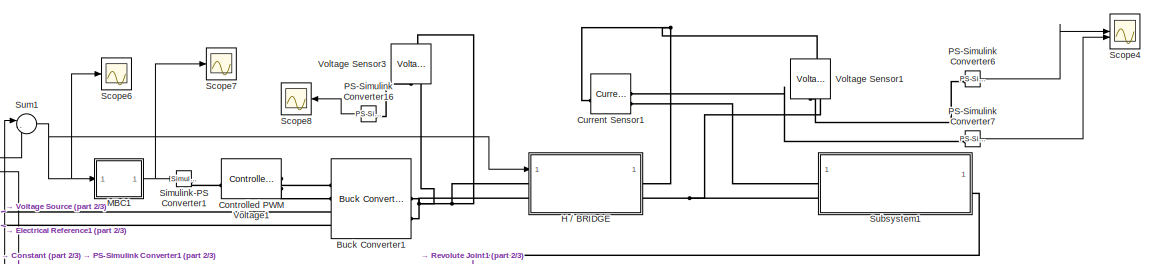
[diagram: root canvas - part 1/3, top center region]
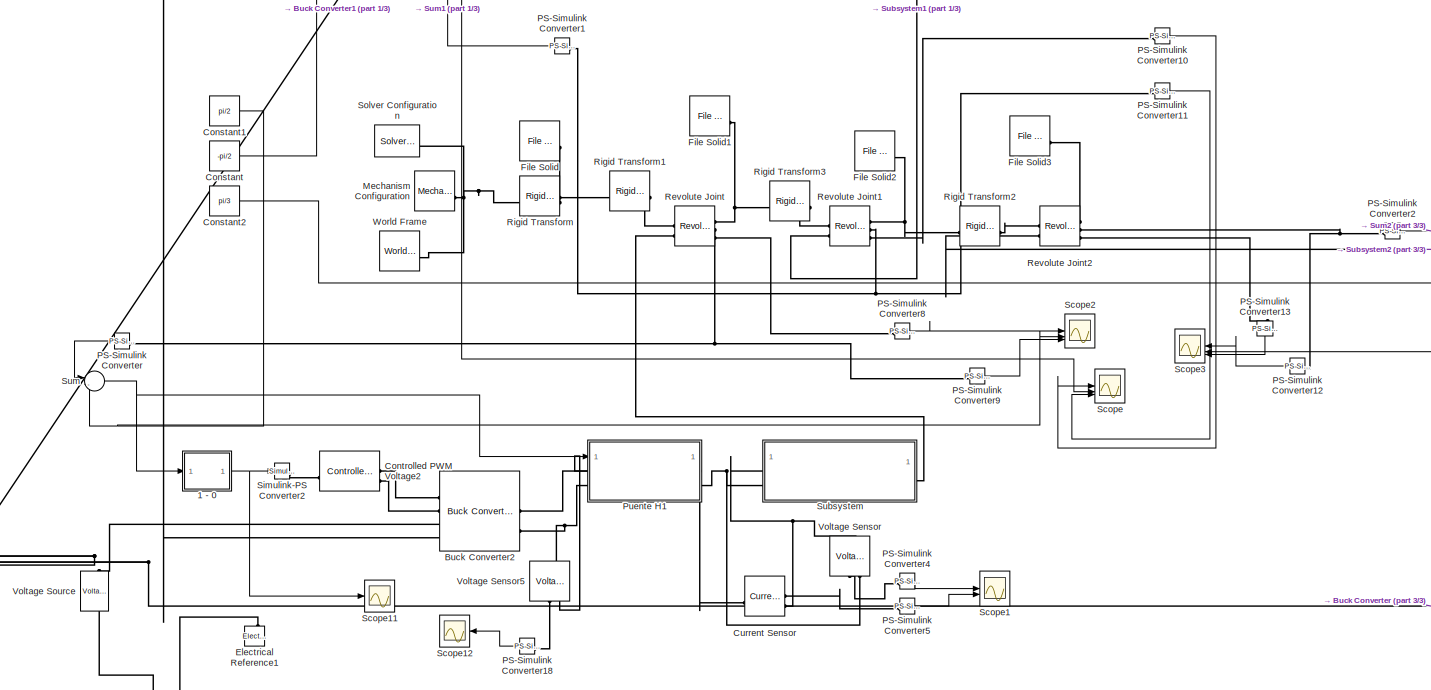
[diagram: root canvas - part 2/3, middle left region]
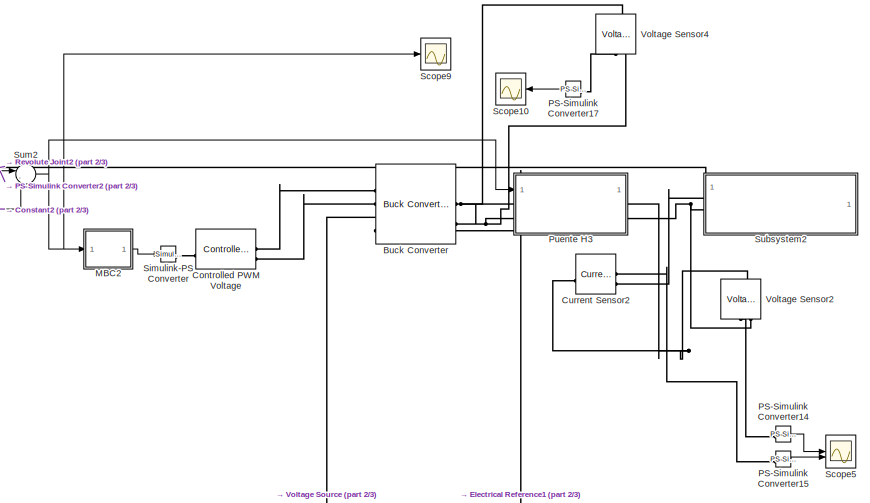
[diagram: root canvas - part 3/3, middle right region]
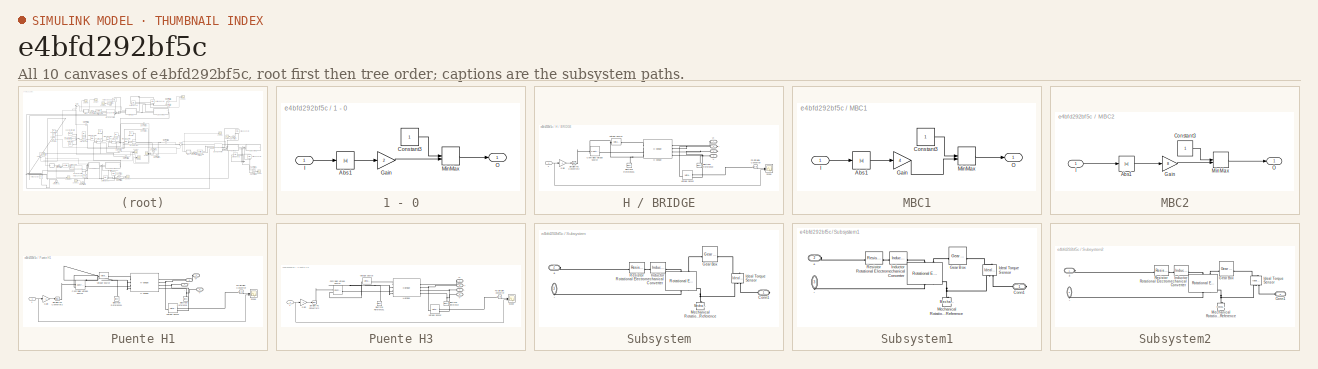
[diagram: thumbnail index - all 10 canvases of the model, root first then tree order]
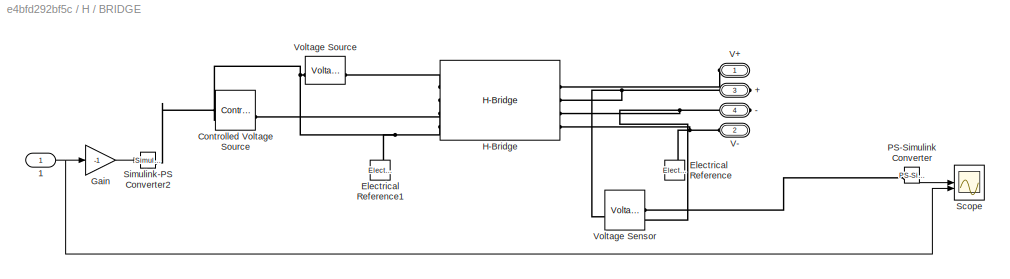
MODEL slx_e4bfd292bf5c
KIND model
CONFIG AbsTol = auto
CONFIG EnableMultiTasking = off
CONFIG FixedStep = auto
CONFIG MaxStep = auto
CONFIG MinStep = 0.0000001
CONFIG RelTol = 1e-3
CONFIG SampleTimeConstraint = Unconstrained
CONFIG SolverName = VariableStepAuto
CONFIG StartTime = 0.0
CONFIG StopTime = 10
BLOCK [SubSystem] 1 - 0
BLOCK [Abs] 1 - 0/Abs1
  SaturateOnIntegerOverflow = off
BLOCK [Constant] 1 - 0/Constant3
BLOCK [Gain] 1 - 0/Gain
  Gain = 2
BLOCK [Inport] 1 - 0/I
  NameLocation = top
BLOCK [MinMax] 1 - 0/MinMax
  Inputs = 2
BLOCK [Outport] 1 - 0/O
BLOCK [Reference] Buck Converter  REF=ee_lib/Semiconductors &
Converters/Converters/Buck Converter
  SourceBlock = ee_lib/Semiconductors &\nConverters/Converters/Buck Converter
  SourceType = Buck Converter
BLOCK [Reference] Buck Converter1  REF=ee_lib/Semiconductors &
Converters/Converters/Buck Converter
  SourceBlock = ee_lib/Semiconductors &\nConverters/Converters/Buck Converter
  SourceType = Buck Converter
BLOCK [Reference] Buck Converter2  REF=ee_lib/Semiconductors &
Converters/Converters/Buck Converter
  SourceBlock = ee_lib/Semiconductors &\nConverters/Converters/Buck Converter
  SourceType = Buck Converter
BLOCK [Constant] Constant
  Value = -pi/2
BLOCK [Constant] Constant1
  Value = pi/2
BLOCK [Constant] Constant2
  Value = pi/3
BLOCK [Reference] Controlled PWM Voltage  REF=ee_lib/Integrated Circuits/Controlled PWM
Voltage
  SourceBlock = ee_lib/Integrated Circuits/Controlled PWM\nVoltage
  SourceType = Controlled PWM\nVoltage
BLOCK [Reference] Controlled PWM Voltage1  REF=ee_lib/Integrated Circuits/Controlled PWM
Voltage
  SourceBlock = ee_lib/Integrated Circuits/Controlled PWM\nVoltage
  SourceType = Controlled PWM\nVoltage
BLOCK [Reference] Controlled PWM Voltage2  REF=ee_lib/Integrated Circuits/Controlled PWM
Voltage
  SourceBlock = ee_lib/Integrated Circuits/Controlled PWM\nVoltage
  SourceType = Controlled PWM\nVoltage
BLOCK [Reference] Current Sensor  REF=fl_lib/Electrical/Electrical Sensors/Current Sensor
  SourceBlock = fl_lib/Electrical/Electrical Sensors/Current Sensor
  SourceType = Current Sensor
BLOCK [Reference] Current Sensor1  REF=fl_lib/Electrical/Electrical Sensors/Current Sensor
  SourceBlock = fl_lib/Electrical/Electrical Sensors/Current Sensor
  SourceType = Current Sensor
BLOCK [Reference] Current Sensor2  REF=fl_lib/Electrical/Electrical Sensors/Current Sensor
  SourceBlock = fl_lib/Electrical/Electrical Sensors/Current Sensor
  SourceType = Current Sensor
BLOCK [Reference] Electrical Reference1  REF=fl_lib/Electrical/Electrical Elements/Electrical Reference
  NameLocation = right
  SourceBlock = fl_lib/Electrical/Electrical Elements/Electrical Reference
  SourceType = Electrical Reference
BLOCK [Reference] File Solid  REF=sm_lib/Body Elements/File Solid
  SourceBlock = sm_lib/Body Elements/File Solid
  SourceType = File Solid
BLOCK [Reference] File Solid1  REF=sm_lib/Body Elements/File Solid
  SourceBlock = sm_lib/Body Elements/File Solid
  SourceType = File Solid
BLOCK [Reference] File Solid2  REF=sm_lib/Body Elements/File Solid
  SourceBlock = sm_lib/Body Elements/File Solid
  SourceType = File Solid
BLOCK [Reference] File Solid3  REF=sm_lib/Body Elements/File Solid
  SourceBlock = sm_lib/Body Elements/File Solid
  SourceType = File Solid
BLOCK [SubSystem] H // BRIDGE
BLOCK [PMIOPort] H // BRIDGE/+
  NameLocation = top
  Port = 3
  Side = Right
BLOCK [PMIOPort] H // BRIDGE/-
  NameLocation = top
  Port = 4
  Side = Right
BLOCK [Inport] H // BRIDGE/1
BLOCK [Reference] H // BRIDGE/Controlled Voltage Source  REF=fl_lib/Electrical/Electrical Sources/Controlled Voltage
Source
  SourceBlock = fl_lib/Electrical/Electrical Sources/Controlled Voltage\nSource
  SourceType = Controlled Voltage\nSource
BLOCK [Reference] H // BRIDGE/Electrical Reference  REF=fl_lib/Electrical/Electrical Elements/Electrical Reference
  NameLocation = right
  SourceBlock = fl_lib/Electrical/Electrical Elements/Electrical Reference
  SourceType = Electrical Reference
BLOCK [Reference] H // BRIDGE/Electrical Reference1  REF=fl_lib/Electrical/Electrical Elements/Electrical Reference
  NameLocation = right
  SourceBlock = fl_lib/Electrical/Electrical Elements/Electrical Reference
  SourceType = Electrical Reference
BLOCK [Gain] H // BRIDGE/Gain
  Gain = -1
BLOCK [Reference] H // BRIDGE/H-Bridge  REF=ee_lib/Semiconductors &
Converters/Converters/H-Bridge
  SourceBlock = ee_lib/Semiconductors &\nConverters/Converters/H-Bridge
  SourceType = H-Bridge
BLOCK [Reference] H // BRIDGE/PS-Simulink Converter  REF=nesl_utility/PS-Simulink
Converter
  SourceBlock = nesl_utility/PS-Simulink\nConverter
  SourceType = PS-Simulink\nConverter
BLOCK [Scope] H // BRIDGE/Scope
  ActiveDisplayYMaximum = 0.22292
  ActiveDisplayYMinimum = -0.22666
  DataLoggingVariableName = ScopeData3
  Floating = off
  GraphicalSettings = {"GraphicalSettings":{"LegacySettings":true,"Style":{"AxesScalingProperties":{"ScaleAxesLimitsAtStop":false},"Style":{"AxesColor":"[0 0 0]","ChannelNames":[""],"ColorOrder":"[1 0.909803921568627 0.392156862745098;0.149019607843137 0.549019607843137 0.866666666666667;0.96078431372549 0.466666666666667 0.16078431372549;0.286274509803922 0.858823529411765 0.250980392156863;0.752941176470588 0.3607843...<+516ch>  <repeated x3 — deduplicated; at blocks: Scope>
  MultipleDisplayCache = [{"MaxYLimMag":0.22666,"MaxYLimReal":0.22292,"MinYLimMag":0,"MinYLimReal":-0.22666,"PlotAsMagnitudePhase":false,"ShowGrid":true,"ShowLegend":false,"Title":"%<SignalLabel>","YLabel":""}]
  NumInputPorts = 2
  WasSavedAsWebScope = on
  WindowPosition = [1632 871 568 423]
BLOCK [Reference] H // BRIDGE/Simulink-PS Converter2  REF=nesl_utility/Simulink-PS
Converter
  SourceBlock = nesl_utility/Simulink-PS\nConverter
  SourceType = Simulink-PS\nConverter
BLOCK [PMIOPort] H // BRIDGE/V+
  NameLocation = top
  Side = Left
BLOCK [PMIOPort] H // BRIDGE/V-
  NameLocation = top
  Port = 2
  Side = Left
BLOCK [Reference] H // BRIDGE/Voltage Sensor  REF=fl_lib/Electrical/Electrical Sensors/Voltage Sensor
  NameLocation = top
  SourceBlock = fl_lib/Electrical/Electrical Sensors/Voltage Sensor
  SourceType = Voltage Sensor
BLOCK [Reference] H // BRIDGE/Voltage Source  REF=ee_lib/Sources/Voltage Source
  SourceBlock = ee_lib/Sources/Voltage Source
  SourceType = Voltage Source
BLOCK [SubSystem] MBC1
BLOCK [Abs] MBC1/Abs1
  SaturateOnIntegerOverflow = off
BLOCK [Constant] MBC1/Constant3
BLOCK [Gain] MBC1/Gain
  Gain = 4
BLOCK [Inport] MBC1/I
  NameLocation = top
BLOCK [MinMax] MBC1/MinMax
  Inputs = 2
BLOCK [Outport] MBC1/O
BLOCK [SubSystem] MBC2
BLOCK [Abs] MBC2/Abs1
  SaturateOnIntegerOverflow = off
BLOCK [Constant] MBC2/Constant3
BLOCK [Gain] MBC2/Gain
  Gain = 8
BLOCK [Inport] MBC2/I
  NameLocation = top
BLOCK [MinMax] MBC2/MinMax
  Inputs = 2
BLOCK [Outport] MBC2/O
BLOCK [Reference] Mechanism Configuration  REF=sm_lib/Utilities/Mechanism
Configuration
  SourceBlock = sm_lib/Utilities/Mechanism\nConfiguration
  SourceType = Mechanism\nConfiguration
BLOCK [Reference] PS-Simulink Converter  REF=nesl_utility/PS-Simulink
Converter
  NameLocation = top
  SourceBlock = nesl_utility/PS-Simulink\nConverter
  SourceType = PS-Simulink\nConverter
BLOCK [Reference] PS-Simulink Converter1  REF=nesl_utility/PS-Simulink
Converter
  NameLocation = top
  SourceBlock = nesl_utility/PS-Simulink\nConverter
  SourceType = PS-Simulink\nConverter
BLOCK [Reference] PS-Simulink Converter10  REF=nesl_utility/PS-Simulink
Converter
  SourceBlock = nesl_utility/PS-Simulink\nConverter
  SourceType = PS-Simulink\nConverter
BLOCK [Reference] PS-Simulink Converter11  REF=nesl_utility/PS-Simulink
Converter
  SourceBlock = nesl_utility/PS-Simulink\nConverter
  SourceType = PS-Simulink\nConverter
BLOCK [Reference] PS-Simulink Converter12  REF=nesl_utility/PS-Simulink
Converter
  NameLocation = top
  SourceBlock = nesl_utility/PS-Simulink\nConverter
  SourceType = PS-Simulink\nConverter
BLOCK [Reference] PS-Simulink Converter13  REF=nesl_utility/PS-Simulink
Converter
  NameLocation = left
  SourceBlock = nesl_utility/PS-Simulink\nConverter
  SourceType = PS-Simulink\nConverter
BLOCK [Reference] PS-Simulink Converter14  REF=nesl_utility/PS-Simulink
Converter
  SourceBlock = nesl_utility/PS-Simulink\nConverter
  SourceType = PS-Simulink\nConverter
BLOCK [Reference] PS-Simulink Converter15  REF=nesl_utility/PS-Simulink
Converter
  SourceBlock = nesl_utility/PS-Simulink\nConverter
  SourceType = PS-Simulink\nConverter
BLOCK [Reference] PS-Simulink Converter16  REF=nesl_utility/PS-Simulink
Converter
  NameLocation = top
  SourceBlock = nesl_utility/PS-Simulink\nConverter
  SourceType = PS-Simulink\nConverter
BLOCK [Reference] PS-Simulink Converter17  REF=nesl_utility/PS-Simulink
Converter
  NameLocation = top
  SourceBlock = nesl_utility/PS-Simulink\nConverter
  SourceType = PS-Simulink\nConverter
BLOCK [Reference] PS-Simulink Converter18  REF=nesl_utility/PS-Simulink
Converter
  NameLocation = top
  SourceBlock = nesl_utility/PS-Simulink\nConverter
  SourceType = PS-Simulink\nConverter
BLOCK [Reference] PS-Simulink Converter2  REF=nesl_utility/PS-Simulink
Converter
  SourceBlock = nesl_utility/PS-Simulink\nConverter
  SourceType = PS-Simulink\nConverter
BLOCK [Reference] PS-Simulink Converter4  REF=nesl_utility/PS-Simulink
Converter
  SourceBlock = nesl_utility/PS-Simulink\nConverter
  SourceType = PS-Simulink\nConverter
BLOCK [Reference] PS-Simulink Converter5  REF=nesl_utility/PS-Simulink
Converter
  SourceBlock = nesl_utility/PS-Simulink\nConverter
  SourceType = PS-Simulink\nConverter
BLOCK [Reference] PS-Simulink Converter6  REF=nesl_utility/PS-Simulink
Converter
  SourceBlock = nesl_utility/PS-Simulink\nConverter
  SourceType = PS-Simulink\nConverter
BLOCK [Reference] PS-Simulink Converter7  REF=nesl_utility/PS-Simulink
Converter
  SourceBlock = nesl_utility/PS-Simulink\nConverter
  SourceType = PS-Simulink\nConverter
BLOCK [Reference] PS-Simulink Converter8  REF=nesl_utility/PS-Simulink
Converter
  SourceBlock = nesl_utility/PS-Simulink\nConverter
  SourceType = PS-Simulink\nConverter
BLOCK [Reference] PS-Simulink Converter9  REF=nesl_utility/PS-Simulink
Converter
  SourceBlock = nesl_utility/PS-Simulink\nConverter
  SourceType = PS-Simulink\nConverter
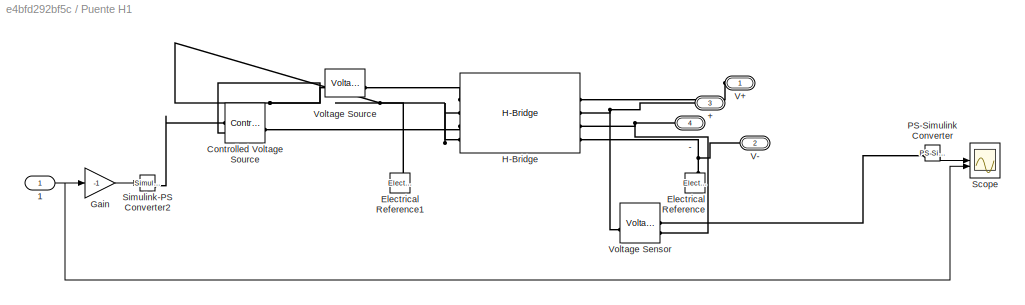
BLOCK [SubSystem] Puente H1
BLOCK [PMIOPort] Puente H1/+
  NameLocation = top
  Port = 3
  Side = Right
BLOCK [PMIOPort] Puente H1/-
  NameLocation = top
  Port = 4
  Side = Right
BLOCK [Inport] Puente H1/1
BLOCK [Reference] Puente H1/Controlled Voltage Source  REF=fl_lib/Electrical/Electrical Sources/Controlled Voltage
Source
  SourceBlock = fl_lib/Electrical/Electrical Sources/Controlled Voltage\nSource
  SourceType = Controlled Voltage\nSource
BLOCK [Reference] Puente H1/Electrical Reference  REF=fl_lib/Electrical/Electrical Elements/Electrical Reference
  NameLocation = right
  SourceBlock = fl_lib/Electrical/Electrical Elements/Electrical Reference
  SourceType = Electrical Reference
BLOCK [Reference] Puente H1/Electrical Reference1  REF=fl_lib/Electrical/Electrical Elements/Electrical Reference
  NameLocation = right
  SourceBlock = fl_lib/Electrical/Electrical Elements/Electrical Reference
  SourceType = Electrical Reference
BLOCK [Gain] Puente H1/Gain
  Gain = -1
BLOCK [Reference] Puente H1/H-Bridge  REF=ee_lib/Semiconductors &
Converters/Converters/H-Bridge
  SourceBlock = ee_lib/Semiconductors &\nConverters/Converters/H-Bridge
  SourceType = H-Bridge
BLOCK [Reference] Puente H1/PS-Simulink Converter  REF=nesl_utility/PS-Simulink
Converter
  SourceBlock = nesl_utility/PS-Simulink\nConverter
  SourceType = PS-Simulink\nConverter
BLOCK [Scope] Puente H1/Scope
  ActiveDisplayYMaximum = 25.62473
  ActiveDisplayYMinimum = -9.33939
  DataLoggingVariableName = ScopeData3
  Floating = off
  MultipleDisplayCache = [{"MaxYLimMag":25.62473,"MaxYLimReal":25.62473,"MinYLimMag":0,"MinYLimReal":-9.33939,"PlotAsMagnitudePhase":false,"ShowGrid":true,"ShowLegend":false,"Title":"%<SignalLabel>","YLabel":""}]
  NumInputPorts = 2
  WasSavedAsWebScope = on
  WindowPosition = [1632 871 568 423]
BLOCK [Reference] Puente H1/Simulink-PS Converter2  REF=nesl_utility/Simulink-PS
Converter
  SourceBlock = nesl_utility/Simulink-PS\nConverter
  SourceType = Simulink-PS\nConverter
BLOCK [PMIOPort] Puente H1/V+
  NameLocation = top
  Side = Left
BLOCK [PMIOPort] Puente H1/V-
  NameLocation = top
  Port = 2
  Side = Left
BLOCK [Reference] Puente H1/Voltage Sensor  REF=fl_lib/Electrical/Electrical Sensors/Voltage Sensor
  NameLocation = top
  SourceBlock = fl_lib/Electrical/Electrical Sensors/Voltage Sensor
  SourceType = Voltage Sensor
BLOCK [Reference] Puente H1/Voltage Source  REF=ee_lib/Sources/Voltage Source
  SourceBlock = ee_lib/Sources/Voltage Source
  SourceType = Voltage Source
BLOCK [SubSystem] Puente H3
BLOCK [PMIOPort] Puente H3/+
  NameLocation = top
  Port = 3
  Side = Right
BLOCK [PMIOPort] Puente H3/-
  NameLocation = top
  Port = 4
  Side = Right
BLOCK [Inport] Puente H3/1
BLOCK [Reference] Puente H3/Controlled Voltage Source  REF=fl_lib/Electrical/Electrical Sources/Controlled Voltage
Source
  SourceBlock = fl_lib/Electrical/Electrical Sources/Controlled Voltage\nSource
  SourceType = Controlled Voltage\nSource
BLOCK [Reference] Puente H3/Electrical Reference  REF=fl_lib/Electrical/Electrical Elements/Electrical Reference
  NameLocation = right
  SourceBlock = fl_lib/Electrical/Electrical Elements/Electrical Reference
  SourceType = Electrical Reference
BLOCK [Reference] Puente H3/Electrical Reference1  REF=fl_lib/Electrical/Electrical Elements/Electrical Reference
  NameLocation = right
  SourceBlock = fl_lib/Electrical/Electrical Elements/Electrical Reference
  SourceType = Electrical Reference
BLOCK [Gain] Puente H3/Gain
  Gain = -1
BLOCK [Reference] Puente H3/H-Bridge  REF=ee_lib/Semiconductors &
Converters/Converters/H-Bridge
  SourceBlock = ee_lib/Semiconductors &\nConverters/Converters/H-Bridge
  SourceType = H-Bridge
BLOCK [Reference] Puente H3/PS-Simulink Converter  REF=nesl_utility/PS-Simulink
Converter
  SourceBlock = nesl_utility/PS-Simulink\nConverter
  SourceType = PS-Simulink\nConverter
BLOCK [Scope] Puente H3/Scope
  ActiveDisplayYMaximum = 22.74285
  ActiveDisplayYMinimum = -12.6843
  DataLoggingVariableName = ScopeData3
  Floating = off
  MultipleDisplayCache = [{"MaxYLimMag":22.74285,"MaxYLimReal":22.74285,"MinYLimMag":0,"MinYLimReal":-12.6843,"PlotAsMagnitudePhase":false,"ShowGrid":true,"ShowLegend":false,"Title":"%<SignalLabel>","YLabel":""}]
  NumInputPorts = 2
  WasSavedAsWebScope = on
  WindowPosition = [1632 871 568 423]
BLOCK [Reference] Puente H3/Simulink-PS Converter2  REF=nesl_utility/Simulink-PS
Converter
  SourceBlock = nesl_utility/Simulink-PS\nConverter
  SourceType = Simulink-PS\nConverter
BLOCK [PMIOPort] Puente H3/V+
  NameLocation = top
  Side = Left
BLOCK [PMIOPort] Puente H3/V-
  NameLocation = top
  Port = 2
  Side = Left
BLOCK [Reference] Puente H3/Voltage Sensor  REF=fl_lib/Electrical/Electrical Sensors/Voltage Sensor
  NameLocation = top
  SourceBlock = fl_lib/Electrical/Electrical Sensors/Voltage Sensor
  SourceType = Voltage Sensor
BLOCK [Reference] Puente H3/Voltage Source  REF=ee_lib/Sources/Voltage Source
  SourceBlock = ee_lib/Sources/Voltage Source
  SourceType = Voltage Source
BLOCK [Reference] Revolute Joint  REF=sm_lib/Joints/Revolute Joint
  SourceBlock = sm_lib/Joints/Revolute Joint
  SourceType = Revolute Joint
BLOCK [Reference] Revolute Joint1  REF=sm_lib/Joints/Revolute Joint
  SourceBlock = sm_lib/Joints/Revolute Joint
  SourceType = Revolute Joint
BLOCK [Reference] Revolute Joint2  REF=sm_lib/Joints/Revolute Joint
  SourceBlock = sm_lib/Joints/Revolute Joint
  SourceType = Revolute Joint
BLOCK [Reference] Rigid Transform  REF=sm_lib/Frames and
Transforms/Rigid
Transform
  SourceBlock = sm_lib/Frames and\nTransforms/Rigid\nTransform
  SourceType = Rigid\nTransform
BLOCK [Reference] Rigid Transform1  REF=sm_lib/Frames and
Transforms/Rigid
Transform
  SourceBlock = sm_lib/Frames and\nTransforms/Rigid\nTransform
  SourceType = Rigid\nTransform
BLOCK [Reference] Rigid Transform2  REF=sm_lib/Frames and
Transforms/Rigid
Transform
  SourceBlock = sm_lib/Frames and\nTransforms/Rigid\nTransform
  SourceType = Rigid\nTransform
BLOCK [Reference] Rigid Transform3  REF=sm_lib/Frames and
Transforms/Rigid
Transform
  SourceBlock = sm_lib/Frames and\nTransforms/Rigid\nTransform
  SourceType = Rigid\nTransform
BLOCK [Scope] Scope
  ActiveDisplayYMaximum = 6.101276106816135
  ActiveDisplayYMinimum = -21.909394688833153
  ContainerLayout = {"WindowBounds":[543,1553,540,575]}
  DataLoggingVariableName = ScopeData1
  Floating = off
  GraphicalSettings = {"AxesScalingProperties":{"AlignXAxis":"Center","AlignYAxis":"Center","AutoScaleXAxisLimits":false,"AxesScaling":"Manual","AxesScalingNumUpdates":10,"ExpandOnly":true,"ScaleAxesLimitsAtStop":false,"XAxisDataRange":100,"YAxisDataRange":80},"DisplayProperties":{"ColorOrder":["auto","auto","auto","auto","auto","auto","auto","auto","auto","auto","auto","auto","auto","auto","auto","auto","auto","auto",...<+2308ch>
  MultipleDisplayCache = [{"MaxYLimMag":22.355018996945756,"MaxYLimReal":6.101276106816135,"MinYLimMag":0,"MinYLimReal":-21.909394688833153,"PlotAsMagnitudePhase":false,"ShowGrid":true,"ShowLegend":true,"Title":"%<SignalLabel>","YLabel":""}]
  NumInputPorts = 3
  ShowLegend = on
  Visible = on
  WasSavedAsWebScope = on
  WindowPosition = [1632 868 576 426]
BLOCK [Scope] Scope1
  ActiveDisplayYMaximum = 27.089698209410535
  ActiveDisplayYMinimum = -13.779161790589466
  ContainerLayout = {"WindowBounds":[502,1553,565,575]}
  DataLoggingVariableName = ScopeData2
  Floating = off
  GraphicalSettings = {"AxesScalingProperties":{"AlignXAxis":"Center","AlignYAxis":"Center","AutoScaleXAxisLimits":false,"AxesScaling":"Manual","AxesScalingNumUpdates":10,"ExpandOnly":true,"ScaleAxesLimitsAtStop":false,"XAxisDataRange":100,"YAxisDataRange":80},"DisplayProperties":{"ColorOrder":["auto","auto","auto","auto","auto","auto","auto","auto","auto","auto","auto","auto","auto","auto","auto","auto","auto","auto",...<+2087ch>
  MultipleDisplayCache = [{"MaxYLimMag":24.22565,"MaxYLimReal":27.089698209410535,"MinYLimMag":0,"MinYLimReal":-13.779161790589466,"PlotAsMagnitudePhase":false,"ShowGrid":true,"ShowLegend":true,"Title":"%<SignalLabel>","YLabel":""}]
  NumInputPorts = 2
  ShowLegend = on
  Visible = on
  WasSavedAsWebScope = on
  WindowPosition = [1628 867 584 429]
BLOCK [Scope] Scope10
  DataLoggingVariableName = ScopeData4
  Floating = off
  GraphicalSettings = {"GraphicalSettings":{"LegacySettings":true,"Style":{"Style":{"CurrentConfiguration":"extmgr.ConfigurationSet","MinimizeControls":"false","PlotType":"Auto","Version":"2024b"}}}}
  NameLocation = top
  NumInputPorts = 1
  WasSavedAsWebScope = on
BLOCK [Scope] Scope11
  ActiveDisplayYMaximum = 1.1490800865800865
  ActiveDisplayYMinimum = -0.16341991341991338
  ContainerLayout = {"WindowBounds":[428,1553,473,575]}
  DataLoggingVariableName = ScopeData6
  Floating = off
  GraphicalSettings = {"AxesScalingProperties":{"AlignXAxis":"Center","AlignYAxis":"Center","AutoScaleXAxisLimits":false,"AxesScaling":"Manual","AxesScalingNumUpdates":10,"ExpandOnly":true,"ScaleAxesLimitsAtStop":false,"XAxisDataRange":100,"YAxisDataRange":80},"DisplayProperties":{"ColorOrder":["auto","auto","auto","auto","auto","auto","auto","auto","auto","auto","auto","auto","auto","auto","auto","auto","auto","auto",...<+1926ch>
  MultipleDisplayCache = [{"MaxYLimMag":1.125,"MaxYLimReal":1.1490800865800865,"MinYLimMag":0,"MinYLimReal":-0.16341991341991338,"PlotAsMagnitudePhase":false,"ShowGrid":true,"ShowLegend":false,"Title":"%<SignalLabel>","YLabel":""}]
  NumInputPorts = 1
  Visible = on
  WasSavedAsWebScope = on
BLOCK [Scope] Scope12
  ActiveDisplayYMaximum = 2.89883
  ActiveDisplayYMinimum = -24.90918
  DataLoggingVariableName = ScopeData7
  Floating = off
  GraphicalSettings = {"GraphicalSettings":{"LegacySettings":true,"Style":{"Style":{"AxesColor":"[0 0 0]","ChannelNames":[""],"ColorOrder":"[1 0.909803921568627 0.392156862745098;0.149019607843137 0.549019607843137 0.866666666666667;0.96078431372549 0.466666666666667 0.16078431372549;0.286274509803922 0.858823529411765 0.250980392156863;0.752941176470588 0.36078431372549 0.984313725490196;0.423529411764706 0.9568627450...<+432ch>
  MultipleDisplayCache = [{"MaxYLimMag":24.90918,"MaxYLimReal":2.89883,"MinYLimMag":0,"MinYLimReal":-24.90918,"PlotAsMagnitudePhase":false,"ShowGrid":true,"ShowLegend":false,"Title":"%<SignalLabel>","YLabel":""}]
  NameLocation = top
  NumInputPorts = 1
  WasSavedAsWebScope = on
BLOCK [Scope] Scope2
  ActiveDisplayYMaximum = 34.034276693763957
  ActiveDisplayYMinimum = -8.5971742351856033
  ContainerLayout = {"WindowBounds":[535,1553,525,575]}
  DataLoggingVariableName = ScopeData3
  Floating = off
  GraphicalSettings = {"AxesScalingProperties":{"AlignXAxis":"Center","AlignYAxis":"Center","AutoScaleXAxisLimits":false,"AxesScaling":"Manual","AxesScalingNumUpdates":10,"ExpandOnly":true,"ScaleAxesLimitsAtStop":false,"XAxisDataRange":100,"YAxisDataRange":80},"DisplayProperties":{"ColorOrder":["auto","auto","auto","auto","auto","auto","auto","auto","auto","auto","auto","auto","auto","auto","auto","auto","auto","auto",...<+2304ch>
  MultipleDisplayCache = [{"MaxYLimMag":34.034276693763957,"MaxYLimReal":34.034276693763957,"MinYLimMag":0,"MinYLimReal":-8.5971742351856033,"PlotAsMagnitudePhase":false,"ShowGrid":true,"ShowLegend":true,"Title":"%<SignalLabel>","YLabel":""}]
  NumInputPorts = 3
  ShowLegend = on
  Visible = on
  WasSavedAsWebScope = on
  WindowPosition = [1628 909 661 387]
BLOCK [Scope] Scope3
  ActiveDisplayYMaximum = 11.634198578457799
  ActiveDisplayYMinimum = -2.714477095355154
  ContainerLayout = {"WindowBounds":[592,1532,465,575]}
  DataLoggingVariableName = ScopeData4
  Floating = off
  GraphicalSettings = {"AxesScalingProperties":{"AlignXAxis":"Center","AlignYAxis":"Center","AutoScaleXAxisLimits":false,"AxesScaling":"Manual","AxesScalingNumUpdates":10,"ExpandOnly":true,"ScaleAxesLimitsAtStop":false,"XAxisDataRange":100,"YAxisDataRange":80},"DisplayProperties":{"ColorOrder":["auto","auto","auto","auto","auto","auto","auto","auto","auto","auto","auto","auto","auto","auto","auto","auto","auto","auto",...<+2308ch>
  MultipleDisplayCache = [{"MaxYLimMag":11.536366698863619,"MaxYLimReal":11.634198578457799,"MinYLimMag":0,"MinYLimReal":-2.714477095355154,"PlotAsMagnitudePhase":false,"ShowGrid":true,"ShowLegend":true,"Title":"%<SignalLabel>","YLabel":""}]
  NameLocation = top
  NumInputPorts = 3
  ShowLegend = on
  Visible = on
  WasSavedAsWebScope = on
  WindowPosition = [1632 868 576 426]
BLOCK [Scope] Scope4
  ActiveDisplayYMaximum = 18.68667
  ActiveDisplayYMinimum = -20.17575
  DataLoggingVariableName = ScopeData5
  Floating = off
  GraphicalSettings = {"GraphicalSettings":{"LegacySettings":true,"Style":{"AxesScalingProperties":{"ScaleAxesLimitsAtStop":false},"Style":{"AxesColor":"[0 0 0]","ChannelNames":[""],"ColorOrder":"[1 0.909803921568627 0.392156862745098;0.149019607843137 0.549019607843137 0.866666666666667;0.96078431372549 0.466666666666667 0.16078431372549;0.286274509803922 0.858823529411765 0.250980392156863;0.752941176470588 0.3607843...<+491ch>
  MultipleDisplayCache = [{"MaxYLimMag":20.17575,"MaxYLimReal":18.68667,"MinYLimMag":0,"MinYLimReal":-20.17575,"PlotAsMagnitudePhase":false,"ShowGrid":true,"ShowLegend":false,"Title":"%<SignalLabel>","YLabel":""}]
  NumInputPorts = 2
  WasSavedAsWebScope = on
  WindowPosition = [1632 871 568 423]
BLOCK [Scope] Scope5
  ActiveDisplayYMaximum = 14.450007148167234
  ActiveDisplayYMinimum = -6.9563266676072111
  ContainerLayout = {"WindowBounds":[520,1553,459,575]}
  DataLoggingVariableName = ScopeData8
  Floating = off
  GraphicalSettings = {"AxesScalingProperties":{"AlignXAxis":"Center","AlignYAxis":"Center","AutoScaleXAxisLimits":false,"AxesScaling":"Manual","AxesScalingNumUpdates":10,"ExpandOnly":true,"ScaleAxesLimitsAtStop":false,"XAxisDataRange":100,"YAxisDataRange":80},"DisplayProperties":{"ColorOrder":["auto","auto","auto","auto","auto","auto","auto","auto","auto","auto","auto","auto","auto","auto","auto","auto","auto","auto",...<+2167ch>
  MultipleDisplayCache = [{"MaxYLimMag":22.69885,"MaxYLimReal":14.450007148167234,"MinYLimMag":0,"MinYLimReal":-6.9563266676072111,"PlotAsMagnitudePhase":false,"ShowGrid":true,"ShowLegend":false,"Title":"%<SignalLabel>","YLabel":""}]
  NumInputPorts = 2
  Visible = on
  WasSavedAsWebScope = on
BLOCK [Scope] Scope6
  ActiveDisplayYMaximum = 0.28147
  ActiveDisplayYMinimum = -1.7766
  ContainerLayout = {"WindowBounds":[485,1553,475,575]}
  DataLoggingVariableName = ScopeData1
  Floating = off
  GraphicalSettings = {"AxesScalingProperties":{"AlignXAxis":"Center","AlignYAxis":"Center","AutoScaleXAxisLimits":false,"AxesScaling":"Manual","AxesScalingNumUpdates":10,"ExpandOnly":true,"ScaleAxesLimitsAtStop":false,"XAxisDataRange":100,"YAxisDataRange":80},"DisplayProperties":{"ColorOrder":["auto","auto","auto","auto","auto","auto","auto","auto","auto","auto","auto","auto","auto","auto","auto","auto","auto","auto",...<+1932ch>
  MultipleDisplayCache = [{"MaxYLimMag":1.7766,"MaxYLimReal":0.28147,"MinYLimMag":0,"MinYLimReal":-1.7766,"PlotAsMagnitudePhase":false,"ShowGrid":true,"ShowLegend":false,"Title":"%<SignalLabel>","YLabel":""}]
  NumInputPorts = 1
  Visible = on
  WasSavedAsWebScope = on
  WindowPosition = [1636 869 568 423]
BLOCK [Scope] Scope7
  ActiveDisplayYMaximum = 1.125
  ActiveDisplayYMinimum = -0.125
  ContainerLayout = {"WindowBounds":[773,1553,538,575]}
  DataLoggingVariableName = ScopeData2
  Floating = off
  GraphicalSettings = {"AxesScalingProperties":{"AlignXAxis":"Center","AlignYAxis":"Center","AutoScaleXAxisLimits":false,"AxesScaling":"Manual","AxesScalingNumUpdates":10,"ExpandOnly":true,"ScaleAxesLimitsAtStop":false,"XAxisDataRange":100,"YAxisDataRange":80},"DisplayProperties":{"ColorOrder":["auto","auto","auto","auto","auto","auto","auto","auto","auto","auto","auto","auto","auto","auto","auto","auto","auto","auto",...<+1924ch>
  MultipleDisplayCache = [{"MaxYLimMag":1.125,"MaxYLimReal":1.125,"MinYLimMag":0,"MinYLimReal":-0.125,"PlotAsMagnitudePhase":false,"ShowGrid":true,"ShowLegend":false,"Title":"%<SignalLabel>","YLabel":""}]
  NumInputPorts = 1
  Visible = on
  WasSavedAsWebScope = on
BLOCK [Scope] Scope8
  ActiveDisplayYMaximum = 24.9287
  ActiveDisplayYMinimum = -3.07455
  DataLoggingVariableName = ScopeData3
  Floating = off
  GraphicalSettings = {"GraphicalSettings":{"LegacySettings":true,"Style":{"AxesScalingProperties":{"ScaleAxesLimitsAtStop":false},"Style":{"AxesColor":"[0 0 0]","ChannelNames":[""],"ColorOrder":"[1 0.909803921568627 0.392156862745098;0.149019607843137 0.549019607843137 0.866666666666667;0.96078431372549 0.466666666666667 0.16078431372549;0.286274509803922 0.858823529411765 0.250980392156863;0.752941176470588 0.3607843...<+488ch>
  MultipleDisplayCache = [{"MaxYLimMag":24.9287,"MaxYLimReal":24.9287,"MinYLimMag":0,"MinYLimReal":-3.07455,"PlotAsMagnitudePhase":false,"ShowGrid":true,"ShowLegend":false,"Title":"%<SignalLabel>","YLabel":""}]
  NameLocation = top
  NumInputPorts = 1
  WasSavedAsWebScope = on
  WindowPosition = [1636 869 568 423]
BLOCK [Scope] Scope9
  ActiveDisplayYMaximum = 1.1819282207840534
  ActiveDisplayYMinimum = -0.16537847509050357
  ContainerLayout = {"WindowBounds":[562,1549,449,575]}
  DataLoggingVariableName = ScopeData5
  Floating = off
  GraphicalSettings = {"AxesScalingProperties":{"AlignXAxis":"Center","AlignYAxis":"Center","AutoScaleXAxisLimits":false,"AxesScaling":"Manual","AxesScalingNumUpdates":10,"ExpandOnly":true,"ScaleAxesLimitsAtStop":false,"XAxisDataRange":100,"YAxisDataRange":80},"DisplayProperties":{"ColorOrder":["auto","auto","auto","auto","auto","auto","auto","auto","auto","auto","auto","auto","auto","auto","auto","auto","auto","auto",...<+1936ch>
  MultipleDisplayCache = [{"MaxYLimMag":1.1819282207840534,"MaxYLimReal":1.1819282207840534,"MinYLimMag":0,"MinYLimReal":-0.16537847509050357,"PlotAsMagnitudePhase":false,"ShowGrid":true,"ShowLegend":false,"Title":"%<SignalLabel>","YLabel":""}]
  NumInputPorts = 1
  Visible = on
  WasSavedAsWebScope = on
BLOCK [Reference] Simulink-PS Converter  REF=nesl_utility/Simulink-PS
Converter
  SourceBlock = nesl_utility/Simulink-PS\nConverter
  SourceType = Simulink-PS\nConverter
BLOCK [Reference] Simulink-PS Converter1  REF=nesl_utility/Simulink-PS
Converter
  SourceBlock = nesl_utility/Simulink-PS\nConverter
  SourceType = Simulink-PS\nConverter
BLOCK [Reference] Simulink-PS Converter2  REF=nesl_utility/Simulink-PS
Converter
  SourceBlock = nesl_utility/Simulink-PS\nConverter
  SourceType = Simulink-PS\nConverter
BLOCK [Reference] Solver Configuration  REF=nesl_utility/Solver
Configuration
  SourceBlock = nesl_utility/Solver\nConfiguration
  SourceType = Solver\nConfiguration
BLOCK [SubSystem] Subsystem
BLOCK [PMIOPort] Subsystem/+
  NameLocation = top
  Port = 2
  Side = Left
BLOCK [PMIOPort] Subsystem/-
  NameLocation = right
  Port = 3
  Side = Left
BLOCK [PMIOPort] Subsystem/Conn1
  Side = Right
BLOCK [Reference] Subsystem/Gear Box  REF=fl_lib/Mechanical/Mechanisms/Gear Box
  SourceBlock = fl_lib/Mechanical/Mechanisms/Gear Box
  SourceType = Gear Box
BLOCK [Reference] Subsystem/Ideal Torque Sensor  REF=fl_lib/Mechanical/Mechanical Sensors/Ideal Torque Sensor
  NameLocation = left
  SourceBlock = fl_lib/Mechanical/Mechanical Sensors/Ideal Torque Sensor
  SourceType = Ideal Torque Sensor
BLOCK [Reference] Subsystem/Inductor  REF=fl_lib/Electrical/Electrical Elements/Inductor
  SourceBlock = fl_lib/Electrical/Electrical Elements/Inductor
  SourceType = Inductor
BLOCK [Reference] Subsystem/Mechanical Rotational Reference  REF=fl_lib/Mechanical/Rotational Elements/Mechanical
Rotational Reference
  NameLocation = right
  SourceBlock = fl_lib/Mechanical/Rotational Elements/Mechanical\nRotational Reference
  SourceType = Mechanical\nRotational Reference
BLOCK [Reference] Subsystem/Resistor  REF=fl_lib/Electrical/Electrical Elements/Resistor
  SourceBlock = fl_lib/Electrical/Electrical Elements/Resistor
  SourceType = Resistor
BLOCK [Reference] Subsystem/Rotational Electromechanical Converter  REF=fl_lib/Electrical/Electrical Elements/Rotational
Electromechanical
Converter
  NameLocation = right
  SourceBlock = fl_lib/Electrical/Electrical Elements/Rotational\nElectromechanical\nConverter
  SourceType = Rotational\nElectromechanical\nConverter
BLOCK [SubSystem] Subsystem1
BLOCK [PMIOPort] Subsystem1/+
  NameLocation = top
  Port = 2
  Side = Left
BLOCK [PMIOPort] Subsystem1/-
  NameLocation = right
  Port = 3
  Side = Left
BLOCK [PMIOPort] Subsystem1/Conn1
  Side = Right
BLOCK [Reference] Subsystem1/Gear Box  REF=fl_lib/Mechanical/Mechanisms/Gear Box
  SourceBlock = fl_lib/Mechanical/Mechanisms/Gear Box
  SourceType = Gear Box
BLOCK [Reference] Subsystem1/Ideal Torque Sensor  REF=fl_lib/Mechanical/Mechanical Sensors/Ideal Torque Sensor
  NameLocation = left
  SourceBlock = fl_lib/Mechanical/Mechanical Sensors/Ideal Torque Sensor
  SourceType = Ideal Torque Sensor
BLOCK [Reference] Subsystem1/Inductor  REF=fl_lib/Electrical/Electrical Elements/Inductor
  SourceBlock = fl_lib/Electrical/Electrical Elements/Inductor
  SourceType = Inductor
BLOCK [Reference] Subsystem1/Mechanical Rotational Reference  REF=fl_lib/Mechanical/Rotational Elements/Mechanical
Rotational Reference
  NameLocation = right
  SourceBlock = fl_lib/Mechanical/Rotational Elements/Mechanical\nRotational Reference
  SourceType = Mechanical\nRotational Reference
BLOCK [Reference] Subsystem1/Resistor  REF=fl_lib/Electrical/Electrical Elements/Resistor
  SourceBlock = fl_lib/Electrical/Electrical Elements/Resistor
  SourceType = Resistor
BLOCK [Reference] Subsystem1/Rotational Electromechanical Converter  REF=fl_lib/Electrical/Electrical Elements/Rotational
Electromechanical
Converter
  NameLocation = right
  SourceBlock = fl_lib/Electrical/Electrical Elements/Rotational\nElectromechanical\nConverter
  SourceType = Rotational\nElectromechanical\nConverter
BLOCK [SubSystem] Subsystem2
  PortSchema = {"entries":[{"content":{"sides":[{"content":{"connectorIds":["LConn1","LConn2"]},"type":"ConnectorPlacement.EquallySpacedRectSide","uuid":"6afb137f-8086-45f2-bca6-49a889cfc63d"},{"content":{"side":"RIGHT"},"type":"ConnectorPlacement.EquallySpacedRectSide","uuid":"8b6c232d-6c89-4929-82c4-13ac9eecbc46"},{"content":{"connectorIds":["LConn3"],"side":"TOP"},"type":"ConnectorPlacement.EquallySpacedRectS...<+236ch>
BLOCK [PMIOPort] Subsystem2/+
  NameLocation = top
  Side = Left
BLOCK [PMIOPort] Subsystem2/-
  NameLocation = right
  Port = 2
  Side = Left
BLOCK [PMIOPort] Subsystem2/Conn1
  Port = 3
  Side = Left
BLOCK [Reference] Subsystem2/Gear Box  REF=fl_lib/Mechanical/Mechanisms/Gear Box
  SourceBlock = fl_lib/Mechanical/Mechanisms/Gear Box
  SourceType = Gear Box
BLOCK [Reference] Subsystem2/Ideal Torque Sensor  REF=fl_lib/Mechanical/Mechanical Sensors/Ideal Torque Sensor
  NameLocation = left
  SourceBlock = fl_lib/Mechanical/Mechanical Sensors/Ideal Torque Sensor
  SourceType = Ideal Torque Sensor
BLOCK [Reference] Subsystem2/Inductor  REF=fl_lib/Electrical/Electrical Elements/Inductor
  SourceBlock = fl_lib/Electrical/Electrical Elements/Inductor
  SourceType = Inductor
BLOCK [Reference] Subsystem2/Mechanical Rotational Reference  REF=fl_lib/Mechanical/Rotational Elements/Mechanical
Rotational Reference
  NameLocation = right
  SourceBlock = fl_lib/Mechanical/Rotational Elements/Mechanical\nRotational Reference
  SourceType = Mechanical\nRotational Reference
BLOCK [Reference] Subsystem2/Resistor  REF=fl_lib/Electrical/Electrical Elements/Resistor
  SourceBlock = fl_lib/Electrical/Electrical Elements/Resistor
  SourceType = Resistor
BLOCK [Reference] Subsystem2/Rotational Electromechanical Converter  REF=fl_lib/Electrical/Electrical Elements/Rotational
Electromechanical
Converter
  NameLocation = right
  SourceBlock = fl_lib/Electrical/Electrical Elements/Rotational\nElectromechanical\nConverter
  SourceType = Rotational\nElectromechanical\nConverter
BLOCK [Sum] Sum
  Inputs = |-+
  NameLocation = top
BLOCK [Sum] Sum1
  Inputs = |-+
  NameLocation = top
BLOCK [Sum] Sum2
  Inputs = |-+
  NameLocation = top
BLOCK [Reference] Voltage Sensor  REF=fl_lib/Electrical/Electrical Sensors/Voltage Sensor
  NameLocation = right
  SourceBlock = fl_lib/Electrical/Electrical Sensors/Voltage Sensor
  SourceType = Voltage Sensor
BLOCK [Reference] Voltage Sensor1  REF=fl_lib/Electrical/Electrical Sensors/Voltage Sensor
  NameLocation = right
  SourceBlock = fl_lib/Electrical/Electrical Sensors/Voltage Sensor
  SourceType = Voltage Sensor
BLOCK [Reference] Voltage Sensor2  REF=fl_lib/Electrical/Electrical Sensors/Voltage Sensor
  NameLocation = right
  SourceBlock = fl_lib/Electrical/Electrical Sensors/Voltage Sensor
  SourceType = Voltage Sensor
BLOCK [Reference] Voltage Sensor3  REF=fl_lib/Electrical/Electrical Sensors/Voltage Sensor
  NameLocation = right
  SourceBlock = fl_lib/Electrical/Electrical Sensors/Voltage Sensor
  SourceType = Voltage Sensor
BLOCK [Reference] Voltage Sensor4  REF=fl_lib/Electrical/Electrical Sensors/Voltage Sensor
  NameLocation = right
  SourceBlock = fl_lib/Electrical/Electrical Sensors/Voltage Sensor
  SourceType = Voltage Sensor
BLOCK [Reference] Voltage Sensor5  REF=fl_lib/Electrical/Electrical Sensors/Voltage Sensor
  NameLocation = right
  SourceBlock = fl_lib/Electrical/Electrical Sensors/Voltage Sensor
  SourceType = Voltage Sensor
BLOCK [Reference] Voltage Source  REF=ee_lib/Sources/Voltage Source
  NameLocation = right
  SourceBlock = ee_lib/Sources/Voltage Source
  SourceType = Voltage Source
BLOCK [Reference] World Frame  REF=sm_lib/Frames and
Transforms/World Frame
  SourceBlock = sm_lib/Frames and\nTransforms/World Frame
  SourceType = World Frame
LINE 1 - 0/Abs1:1 -> 1 - 0/Gain:1
LINE 1 - 0/Constant3:1 -> 1 - 0/MinMax:1
LINE 1 - 0/Gain:1 -> 1 - 0/MinMax:2
LINE 1 - 0/I:1 -> 1 - 0/Abs1:1
LINE 1 - 0/MinMax:1 -> 1 - 0/O:1
NET 1 - 0:1 -> Scope11:1, Simulink-PS Converter2:1
NET Constant1:1 -> Scope2:2, Sum:2
NET Constant2:1 -> Scope3:2, Sum2:2
NET Constant:1 -> Scope:2, Sum1:2
NET H // BRIDGE/1:1 -> H // BRIDGE/Gain:1, H // BRIDGE/Scope:2
LINE H // BRIDGE/Gain:1 -> H // BRIDGE/Simulink-PS Converter2:1
LINE H // BRIDGE/PS-Simulink Converter:1 -> H // BRIDGE/Scope:1
LINE MBC1/Abs1:1 -> MBC1/Gain:1
LINE MBC1/Constant3:1 -> MBC1/MinMax:1
LINE MBC1/Gain:1 -> MBC1/MinMax:2
LINE MBC1/I:1 -> MBC1/Abs1:1
LINE MBC1/MinMax:1 -> MBC1/O:1
NET MBC1:1 -> Scope7:1, Simulink-PS Converter1:1
LINE MBC2/Abs1:1 -> MBC2/Gain:1
LINE MBC2/Constant3:1 -> MBC2/MinMax:1
LINE MBC2/Gain:1 -> MBC2/MinMax:2
LINE MBC2/I:1 -> MBC2/Abs1:1
LINE MBC2/MinMax:1 -> MBC2/O:1
LINE MBC2:1 -> Simulink-PS Converter:1
LINE PS-Simulink Converter10:1 -> Scope:1
LINE PS-Simulink Converter11:1 -> Scope:3
LINE PS-Simulink Converter12:1 -> Scope3:1
LINE PS-Simulink Converter13:1 -> Scope3:3
LINE PS-Simulink Converter14:1 -> Scope5:1
LINE PS-Simulink Converter15:1 -> Scope5:2
LINE PS-Simulink Converter16:1 -> Scope8:1
LINE PS-Simulink Converter17:1 -> Scope10:1
LINE PS-Simulink Converter18:1 -> Scope12:1
LINE PS-Simulink Converter1:1 -> Sum1:1
LINE PS-Simulink Converter2:1 -> Sum2:1
LINE PS-Simulink Converter4:1 -> Scope1:1
LINE PS-Simulink Converter5:1 -> Scope1:2
LINE PS-Simulink Converter6:1 -> Scope4:1
LINE PS-Simulink Converter7:1 -> Scope4:2
LINE PS-Simulink Converter8:1 -> Scope2:1
LINE PS-Simulink Converter9:1 -> Scope2:3
LINE PS-Simulink Converter:1 -> Sum:1
NET Puente H1/1:1 -> Puente H1/Gain:1, Puente H1/Scope:2
LINE Puente H1/Gain:1 -> Puente H1/Simulink-PS Converter2:1
LINE Puente H1/PS-Simulink Converter:1 -> Puente H1/Scope:1
NET Puente H3/1:1 -> Puente H3/Gain:1, Puente H3/Scope:2
LINE Puente H3/Gain:1 -> Puente H3/Simulink-PS Converter2:1
LINE Puente H3/PS-Simulink Converter:1 -> Puente H3/Scope:1
NET Sum1:1 -> H // BRIDGE:1, MBC1:1, Scope6:1
NET Sum2:1 -> MBC2:1, Puente H3:1, Scope9:1
NET Sum:1 -> 1 - 0:1, Puente H1:1
PLINE Buck Converter1:LConn1 -- Controlled PWM Voltage1:RConn1
PLINE Buck Converter1:LConn2 -- Controlled PWM Voltage1:RConn2
PNET net1: Buck Converter1:LConn3 -- Buck Converter2:LConn3 -- Buck Converter:LConn3 -- Voltage Source:LConn1
PNET net2: Buck Converter1:LConn4 -- Buck Converter2:LConn4 -- Buck Converter:LConn4 -- Electrical Reference1:LConn1 -- Voltage Source:RConn1
PNET net3: Buck Converter1:RConn1 -- H // BRIDGE:LConn1 -- Voltage Sensor3:LConn1
PNET net4: Buck Converter1:RConn2 -- H // BRIDGE:LConn2 -- Voltage Sensor3:RConn2
PLINE Buck Converter2:LConn1 -- Controlled PWM Voltage2:RConn1
PLINE Buck Converter2:LConn2 -- Controlled PWM Voltage2:RConn2
PNET net5: Buck Converter2:RConn1 -- Puente H1:LConn1 -- Voltage Sensor5:RConn2
PNET net6: Buck Converter2:RConn2 -- Puente H1:LConn2 -- Voltage Sensor5:LConn1
PLINE Buck Converter:LConn1 -- Controlled PWM Voltage:RConn1
PLINE Buck Converter:LConn2 -- Controlled PWM Voltage:RConn2
PNET net7: Buck Converter:RConn1 -- Puente H3:LConn1 -- Voltage Sensor4:LConn1
PNET net8: Buck Converter:RConn2 -- Puente H3:LConn2 -- Voltage Sensor4:RConn2
PLINE Controlled PWM Voltage1:LConn1 -- Simulink-PS Converter1:RConn1
PLINE Controlled PWM Voltage2:LConn1 -- Simulink-PS Converter2:RConn1
PLINE Controlled PWM Voltage:LConn1 -- Simulink-PS Converter:RConn1
PNET net9: Current Sensor1:LConn1 -- H // BRIDGE:RConn1 -- Voltage Sensor1:LConn1
PLINE Current Sensor1:RConn1 -- PS-Simulink Converter7:LConn1
PLINE Current Sensor1:RConn2 -- Subsystem1:LConn1
PNET net10: Current Sensor2:LConn1 -- Puente H3:RConn1 -- Voltage Sensor2:LConn1
PLINE Current Sensor2:RConn1 -- PS-Simulink Converter15:LConn1
PLINE Current Sensor2:RConn2 -- Subsystem2:LConn1
PLINE Current Sensor:LConn1 -- Puente H1:RConn1
PLINE Current Sensor:RConn1 -- PS-Simulink Converter5:LConn1
PNET net11: Current Sensor:RConn2 -- Subsystem:LConn1 -- Voltage Sensor:LConn1
PNET net12: File Solid1:RConn1 -- Revolute Joint:RConn1 -- Rigid Transform3:LConn1
PNET net13: File Solid2:RConn1 -- Revolute Joint1:RConn1 -- Rigid Transform2:LConn1
PLINE File Solid3:RConn1 -- Revolute Joint2:RConn1
PNET net14: File Solid:RConn1 -- Rigid Transform1:LConn1 -- Rigid Transform:RConn1
PNET net15: H // BRIDGE/+:RConn1 -- H // BRIDGE/H-Bridge:RConn2 -- H // BRIDGE/Voltage Sensor:LConn1
PNET net16: H // BRIDGE/-:RConn1 -- H // BRIDGE/H-Bridge:RConn3 -- H // BRIDGE/Voltage Sensor:RConn2
PLINE H // BRIDGE/Controlled Voltage Source:LConn1 -- H // BRIDGE/H-Bridge:LConn3
PLINE H // BRIDGE/Controlled Voltage Source:RConn1 -- H // BRIDGE/Simulink-PS Converter2:RConn1
PNET net17: H // BRIDGE/Controlled Voltage Source:RConn2 -- H // BRIDGE/Electrical Reference1:LConn1 -- H // BRIDGE/H-Bridge:LConn2 -- H // BRIDGE/H-Bridge:LConn4 -- H // BRIDGE/Voltage Source:RConn1
PNET net18: H // BRIDGE/Electrical Reference:LConn1 -- H // BRIDGE/H-Bridge:RConn4 -- H // BRIDGE/V-:RConn1
PLINE H // BRIDGE/H-Bridge:LConn1 -- H // BRIDGE/Voltage Source:LConn1
PLINE H // BRIDGE/H-Bridge:RConn1 -- H // BRIDGE/V+:RConn1
PLINE H // BRIDGE/PS-Simulink Converter:LConn1 -- H // BRIDGE/Voltage Sensor:RConn1
PNET net19: H // BRIDGE:RConn2 -- Subsystem1:LConn2 -- Voltage Sensor1:RConn2
PNET net20: Mechanism Configuration:RConn1 -- Rigid Transform:LConn1 -- Solver Configuration:RConn1 -- World Frame:RConn1
PLINE PS-Simulink Converter10:LConn1 -- Revolute Joint1:RConn3
PNET net21: PS-Simulink Converter11:LConn1 -- PS-Simulink Converter1:LConn1 -- Revolute Joint1:RConn2
PNET net22: PS-Simulink Converter12:LConn1 -- PS-Simulink Converter2:LConn1 -- Revolute Joint2:RConn2
PLINE PS-Simulink Converter13:LConn1 -- Revolute Joint2:RConn3
PLINE PS-Simulink Converter14:LConn1 -- Voltage Sensor2:RConn1
PLINE PS-Simulink Converter16:LConn1 -- Voltage Sensor3:RConn1
PLINE PS-Simulink Converter17:LConn1 -- Voltage Sensor4:RConn1
PLINE PS-Simulink Converter18:LConn1 -- Voltage Sensor5:RConn1
PLINE PS-Simulink Converter4:LConn1 -- Voltage Sensor:RConn1
PLINE PS-Simulink Converter6:LConn1 -- Voltage Sensor1:RConn1
PLINE PS-Simulink Converter8:LConn1 -- Revolute Joint:RConn3
PNET net23: PS-Simulink Converter9:LConn1 -- PS-Simulink Converter:LConn1 -- Revolute Joint:RConn2
PNET net24: Puente H1/+:RConn1 -- Puente H1/H-Bridge:RConn2 -- Puente H1/Voltage Sensor:LConn1
PNET net25: Puente H1/-:RConn1 -- Puente H1/H-Bridge:RConn3 -- Puente H1/Voltage Sensor:RConn2
PLINE Puente H1/Controlled Voltage Source:LConn1 -- Puente H1/H-Bridge:LConn3
PLINE Puente H1/Controlled Voltage Source:RConn1 -- Puente H1/Simulink-PS Converter2:RConn1
PNET net26: Puente H1/Controlled Voltage Source:RConn2 -- Puente H1/Electrical Reference1:LConn1 -- Puente H1/H-Bridge:LConn2 -- Puente H1/H-Bridge:LConn4 -- Puente H1/Voltage Source:RConn1
PNET net27: Puente H1/Electrical Reference:LConn1 -- Puente H1/H-Bridge:RConn4 -- Puente H1/V-:RConn1
PLINE Puente H1/H-Bridge:LConn1 -- Puente H1/Voltage Source:LConn1
PLINE Puente H1/H-Bridge:RConn1 -- Puente H1/V+:RConn1
PLINE Puente H1/PS-Simulink Converter:LConn1 -- Puente H1/Voltage Sensor:RConn1
PNET net28: Puente H1:RConn2 -- Subsystem:LConn2 -- Voltage Sensor:RConn2
PNET net29: Puente H3/+:RConn1 -- Puente H3/H-Bridge:RConn2 -- Puente H3/Voltage Sensor:LConn1
PNET net30: Puente H3/-:RConn1 -- Puente H3/H-Bridge:RConn3 -- Puente H3/Voltage Sensor:RConn2
PLINE Puente H3/Controlled Voltage Source:LConn1 -- Puente H3/H-Bridge:LConn3
PLINE Puente H3/Controlled Voltage Source:RConn1 -- Puente H3/Simulink-PS Converter2:RConn1
PNET net31: Puente H3/Controlled Voltage Source:RConn2 -- Puente H3/Electrical Reference1:LConn1 -- Puente H3/H-Bridge:LConn2 -- Puente H3/H-Bridge:LConn4 -- Puente H3/Voltage Source:RConn1
PNET net32: Puente H3/Electrical Reference:LConn1 -- Puente H3/H-Bridge:RConn4 -- Puente H3/V-:RConn1
PLINE Puente H3/H-Bridge:LConn1 -- Puente H3/Voltage Source:LConn1
PLINE Puente H3/H-Bridge:RConn1 -- Puente H3/V+:RConn1
PLINE Puente H3/PS-Simulink Converter:LConn1 -- Puente H3/Voltage Sensor:RConn1
PNET net33: Puente H3:RConn2 -- Subsystem2:LConn2 -- Voltage Sensor2:RConn2
PLINE Revolute Joint1:LConn1 -- Rigid Transform3:RConn1
PLINE Revolute Joint1:LConn2 -- Subsystem1:RConn1
PLINE Revolute Joint2:LConn1 -- Rigid Transform2:RConn1
PLINE Revolute Joint2:LConn2 -- Subsystem2:LConn3
PLINE Revolute Joint:LConn1 -- Rigid Transform1:RConn1
PLINE Revolute Joint:LConn2 -- Subsystem:RConn1
PLINE Subsystem/+:RConn1 -- Subsystem/Resistor:LConn1
PLINE Subsystem/-:RConn1 -- Subsystem/Rotational Electromechanical Converter:RConn1
PLINE Subsystem/Conn1:RConn1 -- Subsystem/Ideal Torque Sensor:RConn2
PLINE Subsystem/Gear Box:LConn1 -- Subsystem/Rotational Electromechanical Converter:LConn2
PLINE Subsystem/Gear Box:RConn1 -- Subsystem/Ideal Torque Sensor:LConn1
PNET net34: Subsystem/Ideal Torque Sensor:RConn1 -- Subsystem/Mechanical Rotational Reference:LConn1 -- Subsystem/Rotational Electromechanical Converter:RConn2
PLINE Subsystem/Inductor:LConn1 -- Subsystem/Resistor:RConn1
PLINE Subsystem/Inductor:RConn1 -- Subsystem/Rotational Electromechanical Converter:LConn1
PLINE Subsystem1/+:RConn1 -- Subsystem1/Resistor:LConn1
PLINE Subsystem1/-:RConn1 -- Subsystem1/Rotational Electromechanical Converter:RConn1
PLINE Subsystem1/Conn1:RConn1 -- Subsystem1/Ideal Torque Sensor:RConn2
PLINE Subsystem1/Gear Box:LConn1 -- Subsystem1/Rotational Electromechanical Converter:LConn2
PLINE Subsystem1/Gear Box:RConn1 -- Subsystem1/Ideal Torque Sensor:LConn1
PNET net35: Subsystem1/Ideal Torque Sensor:RConn1 -- Subsystem1/Mechanical Rotational Reference:LConn1 -- Subsystem1/Rotational Electromechanical Converter:RConn2
PLINE Subsystem1/Inductor:LConn1 -- Subsystem1/Resistor:RConn1
PLINE Subsystem1/Inductor:RConn1 -- Subsystem1/Rotational Electromechanical Converter:LConn1
PLINE Subsystem2/+:RConn1 -- Subsystem2/Resistor:LConn1
PLINE Subsystem2/-:RConn1 -- Subsystem2/Rotational Electromechanical Converter:RConn1
PLINE Subsystem2/Conn1:RConn1 -- Subsystem2/Ideal Torque Sensor:RConn2
PLINE Subsystem2/Gear Box:LConn1 -- Subsystem2/Rotational Electromechanical Converter:LConn2
PLINE Subsystem2/Gear Box:RConn1 -- Subsystem2/Ideal Torque Sensor:LConn1
PNET net36: Subsystem2/Ideal Torque Sensor:RConn1 -- Subsystem2/Mechanical Rotational Reference:LConn1 -- Subsystem2/Rotational Electromechanical Converter:RConn2
PLINE Subsystem2/Inductor:LConn1 -- Subsystem2/Resistor:RConn1
PLINE Subsystem2/Inductor:RConn1 -- Subsystem2/Rotational Electromechanical Converter:LConn1
note: NET lines group one-source signal fan-out (src -> all destinations, sorted); 1:1 wires keep LINE; PNET lines group multi-terminal physical nets as a canonical sorted terminal list (undirected conserving connections); 2-terminal nets keep the pairwise PLINE form
